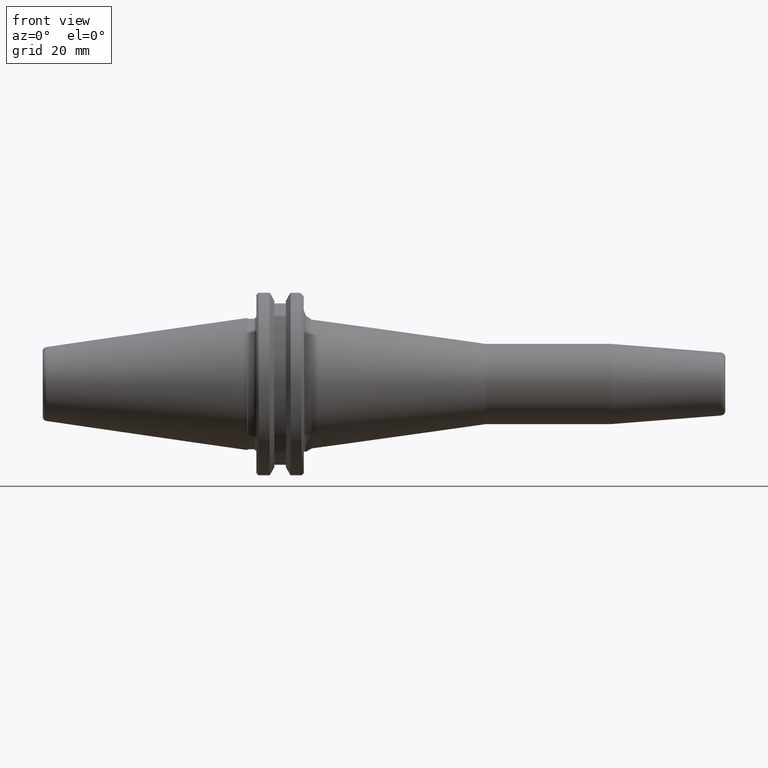
[diagram: clean part render]
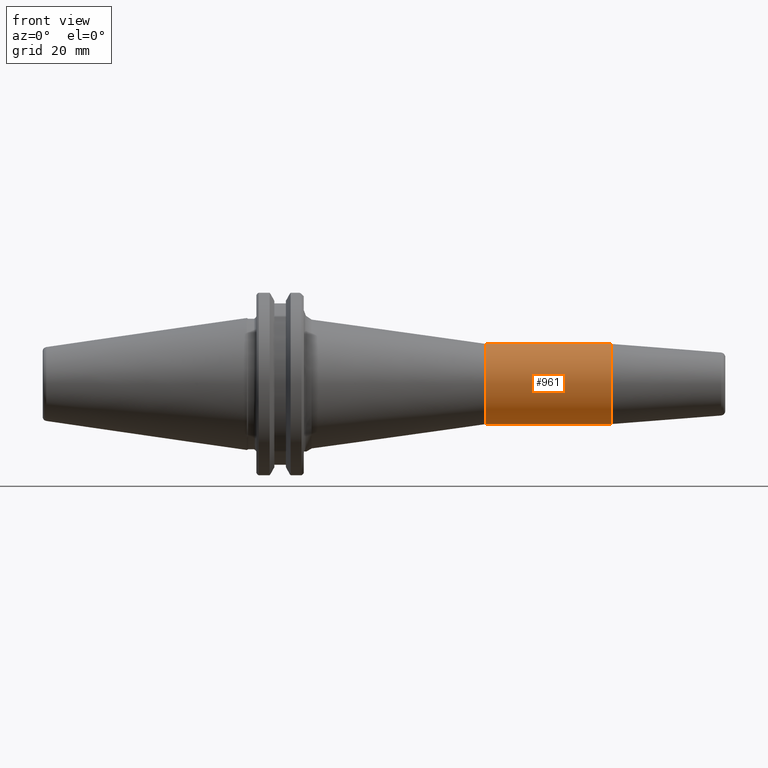
[diagram: same view with one face highlighted and labeled with its STEP entity id]
A machine part, front view. The second image highlights one B-rep face of the part: STEP entity #961.
In plain terms, the highlighted cylindrical surface (bore or boss wall) has radius 13.5 mm, axis along (1, 0, 0).
Its self-contained STEP definition (entity closure, byte-faithful):
#577=CARTESIAN_POINT('',(80.009999999999977,13.500000000000005,0.0));
#578=VERTEX_POINT('',#577);
#579=CARTESIAN_POINT('',(80.009999999999977,0.0,0.0));
#580=DIRECTION('',(1.0,0.0,0.0));
#581=DIRECTION('',(0.0,1.0,0.0));
#582=AXIS2_PLACEMENT_3D('',#579,#580,#581);
#583=CIRCLE('',#582,13.500000000000005);
#584=EDGE_CURVE('',#578,#578,#583,.T.);
#625=CARTESIAN_POINT('',(121.891385791475680,13.500000000000012,0.0));
#626=VERTEX_POINT('',#625);
#627=CARTESIAN_POINT('',(121.891385791475680,0.0,0.0));
#628=DIRECTION('',(1.0,0.0,0.0));
#629=DIRECTION('',(0.0,1.0,0.0));
#630=AXIS2_PLACEMENT_3D('',#627,#628,#629);
#631=CIRCLE('',#630,13.500000000000012);
#632=EDGE_CURVE('',#626,#626,#631,.T.);
#950=CARTESIAN_POINT('',(70.470692895737841,0.0,0.0));
#951=DIRECTION('',(1.0,0.0,0.0));
#952=DIRECTION('',(0.0,1.0,0.0));
#953=AXIS2_PLACEMENT_3D('',#950,#951,#952);
#954=CYLINDRICAL_SURFACE('',#953,13.500000000000000);
#955=ORIENTED_EDGE('',*,*,#632,.F.);
#956=EDGE_LOOP('',(#955));
#957=FACE_OUTER_BOUND('',#956,.T.);
#958=ORIENTED_EDGE('',*,*,#584,.T.);
#959=EDGE_LOOP('',(#958));
#960=FACE_BOUND('',#959,.T.);
#961=ADVANCED_FACE('',(#957,#960),#954,.T.);